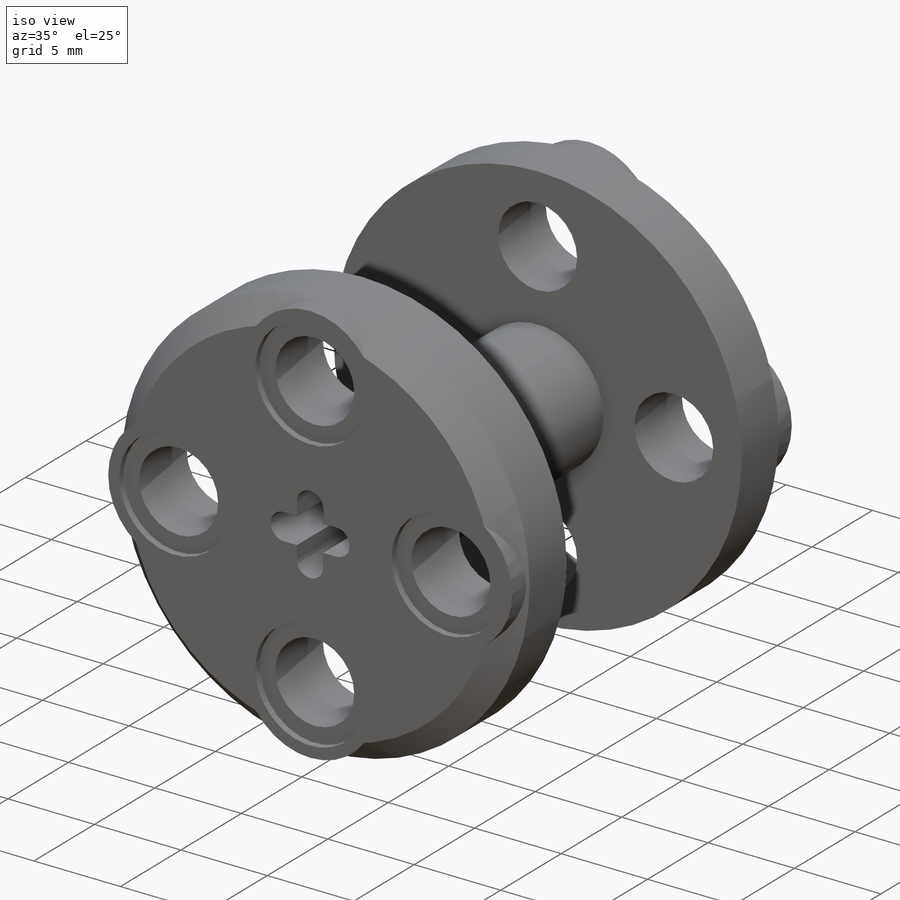
[diagram: iso view]
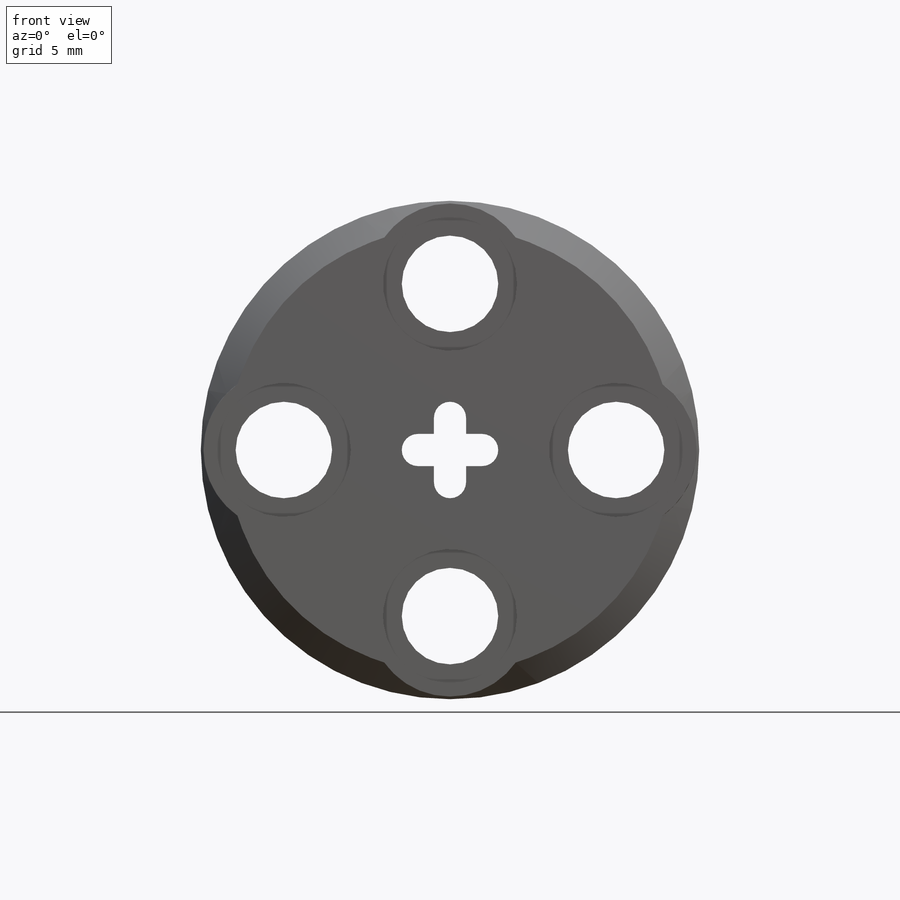
[diagram: front view]
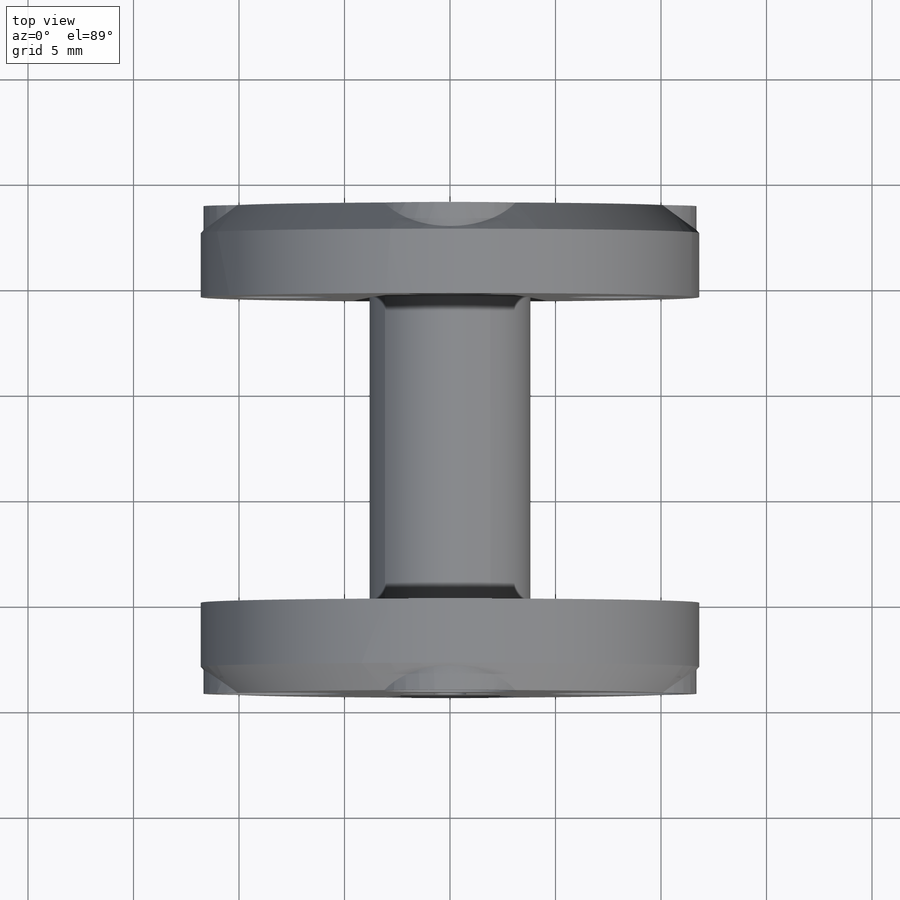
[diagram: top view]
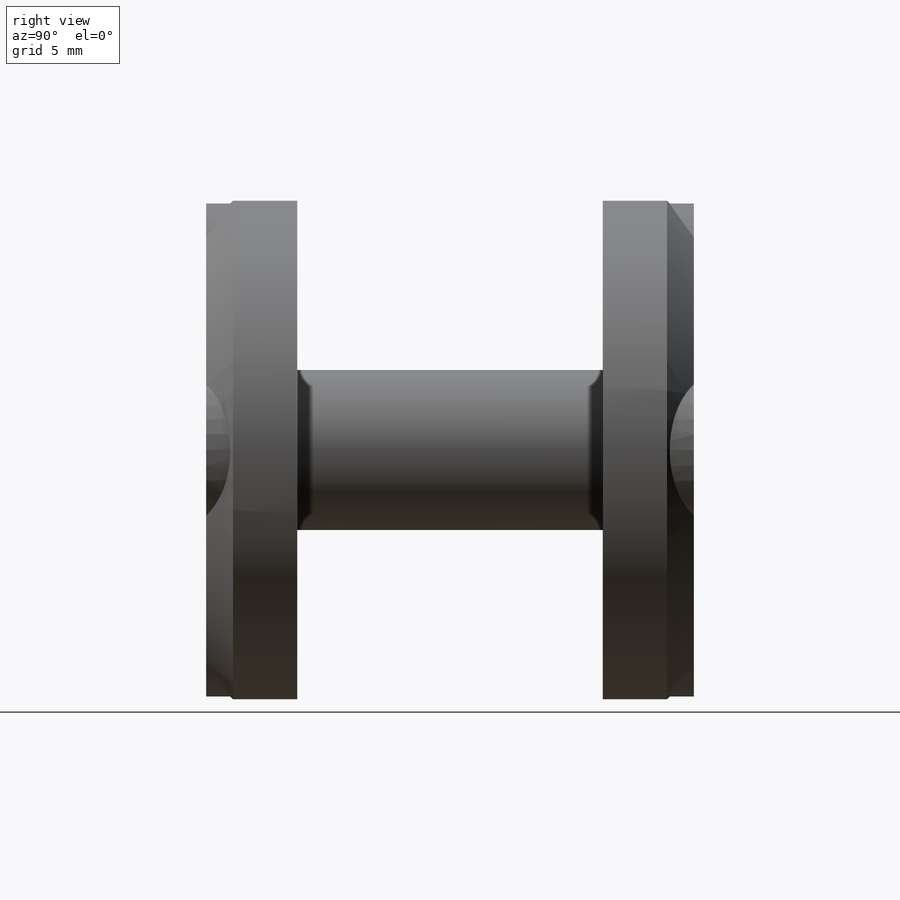
[diagram: right view]
SOLIDWORKS PART (.sldprt)
format: sldprt  version: not decoded by parser v0  size: 415,232 bytes
history: native  units: mm
features: sketch x8, extrude x5, cut_extrude x3, material x1, chamfer x1, plane x1, mirror x1, pattern_circular x1 (+11 scaffold rows collapsed)
feature tree (32):
  scaffold x11  (default folders/planes/origin — collapsed)
  material  "PVC Rigid"
  sketch  "Sketch1"  dims[D1=23.622mm D3=4.572mm D2=7.874mm]
  extrude  "Extrude1"  Depth=4.318mm
  chamfer  "Chamfer1"  Distance=1.27mm Angle=45deg
  sketch  "Sketch2"  dims[D1=5.588mm]
  extrude  "Extrude2"  Depth=4.318mm
  plane  "Plane1"  Offset=11.557mm
  sketch  "Sketch3"  dims[D1=7.62mm]
  extrude  "Extrude3"  [1 undecoded]
  sketch  "Sketch4"  dims[c1.D6=0.254mm c1.D1=4.572mm c1.D2=4.572mm c1.D3=1.524mm c1.D4=1.524mm c1.D5=1.524mm c2.D1=1.524mm c2.D2=3.048mm c2.D3=1.524mm c2.D4=3.048mm]
  cut_extrude  "Cut-Extrude1"  [1 undecoded]
  mirror  "Mirror1"
  sketch  "Sketch5"  dims[D1=6.35mm D2=7.62mm]
  extrude  "Boss-Extrude3"  [1 undecoded]
  sketch  "Sketch6"
  extrude  "Boss-Extrude5"  [1 undecoded]
  cut_extrude  "Cut-Extrude2"  [1 undecoded]
  sketch  "Sketch5<3>"  dims[D1=0.381mm]
  cut_extrude  "Cut-Extrude3"  [1 undecoded]
  sketch  "Sketch6<3>"  dims[D1=0.381mm]
  pattern_circular  "CirPattern1"  Count=4 Angle=360deg
decode coverage: 11 of 19 modeling features carry decoded parameters
note: 6 parameter values undecoded
summary: no parameter record found for 6 features
note: suppression state not decoded; provenance and decode notes live in map.json
